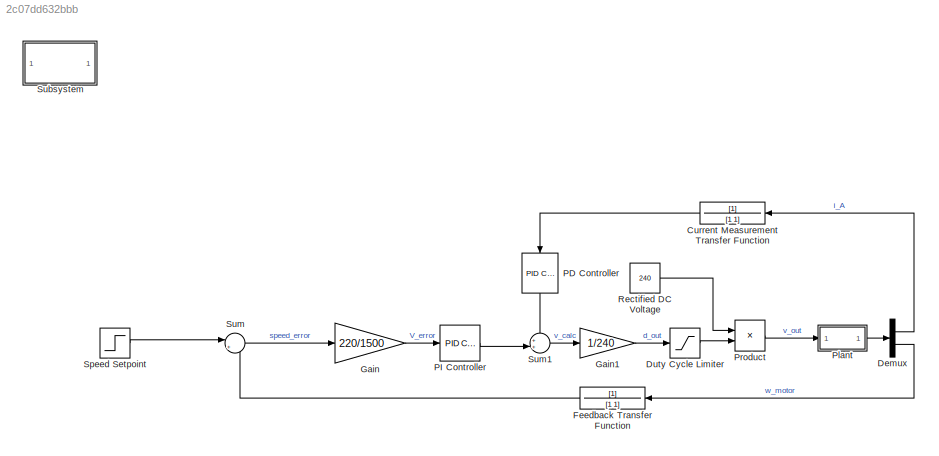
MODEL slx_2c07dd632bbb
KIND model
CONFIG AbsTol = auto
CONFIG EnableMultiTasking = off
CONFIG FixedStep = auto
CONFIG MaxStep = auto
CONFIG MinStep = auto
CONFIG RelTol = 1e-3
CONFIG SampleTimeConstraint = Unconstrained
CONFIG SolverName = VariableStepAuto
CONFIG StartTime = 0.0
CONFIG StopTime = 10.0
BLOCK [TransferFcn] Current Measurement Transfer Function
  Denominator = [1 1]
BLOCK [Demux] Demux
  Outputs = 2
BLOCK [Saturate] Duty Cycle Limiter
  LowerLimit = 0
  UpperLimit = 1
BLOCK [TransferFcn] Feedback Transfer Function
  Denominator = [1 1]
BLOCK [Gain] Gain
  Gain = 220/1500
BLOCK [Gain] Gain1
  Gain = 1/240
BLOCK [Reference] PD Controller  REF=slpidlib/PID Controller
  LibrarySourceBlock = simulink/Continuous/PID Controller
  NameLocation = left
  SourceBlock = slpidlib/PID Controller
  SourceType = PID 1dof
BLOCK [Reference] PI Controller  REF=slpidlib/PID Controller
  LibrarySourceBlock = simulink/Continuous/PID Controller
  SourceBlock = slpidlib/PID Controller
  SourceType = PID 1dof
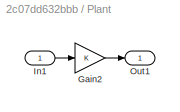
BLOCK [SubSystem] Plant
BLOCK [Gain] Plant/Gain2
BLOCK [Inport] Plant/In1
BLOCK [Outport] Plant/Out1
BLOCK [Product] Product
BLOCK [Constant] Rectified DC Voltage
  Value = 240
BLOCK [Step] Speed Setpoint
  SampleTime = 0
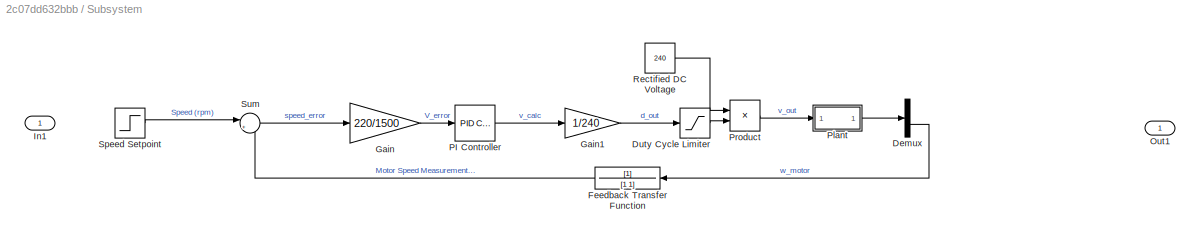
BLOCK [SubSystem] Subsystem
BLOCK [Demux] Subsystem/Demux
  Outputs = 2
BLOCK [Saturate] Subsystem/Duty Cycle Limiter
  LowerLimit = 0
  UpperLimit = 1
BLOCK [TransferFcn] Subsystem/Feedback Transfer Function
  Denominator = [1 1]
BLOCK [Gain] Subsystem/Gain
  Gain = 220/1500
BLOCK [Gain] Subsystem/Gain1
  Gain = 1/240
BLOCK [Inport] Subsystem/In1
BLOCK [Outport] Subsystem/Out1
BLOCK [Reference] Subsystem/PI Controller  REF=slpidlib/PID Controller
  LibrarySourceBlock = simulink/Continuous/PID Controller
  SourceBlock = slpidlib/PID Controller
  SourceType = PID 1dof
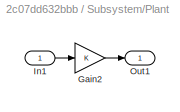
BLOCK [SubSystem] Subsystem/Plant
BLOCK [Gain] Subsystem/Plant/Gain2
BLOCK [Inport] Subsystem/Plant/In1
BLOCK [Outport] Subsystem/Plant/Out1
BLOCK [Product] Subsystem/Product
BLOCK [Constant] Subsystem/Rectified DC Voltage
  Value = 240
BLOCK [Step] Subsystem/Speed Setpoint
  SampleTime = 0
BLOCK [Sum] Subsystem/Sum
  Inputs = |+-
BLOCK [Sum] Sum
  Inputs = |+-
BLOCK [Sum] Sum1
  Inputs = ++|
LINE Current Measurement Transfer Function:1 -> PD Controller:1
LINE Demux:1 -> Current Measurement Transfer Function:1
LINE Demux:2 -> Feedback Transfer Function:1
LINE Duty Cycle Limiter:1 -> Product:2
LINE Feedback Transfer Function:1 -> Sum:2
LINE Gain1:1 -> Duty Cycle Limiter:1
LINE Gain:1 -> PI Controller:1
LINE PD Controller:1 -> Sum1:1
LINE PI Controller:1 -> Sum1:2
LINE Plant/Gain2:1 -> Plant/Out1:1
LINE Plant/In1:1 -> Plant/Gain2:1
LINE Plant:1 -> Demux:1
LINE Product:1 -> Plant:1
LINE Rectified DC Voltage:1 -> Product:1
LINE Speed Setpoint:1 -> Sum:1
LINE Subsystem/Demux:2 -> Subsystem/Feedback Transfer Function:1
LINE Subsystem/Duty Cycle Limiter:1 -> Subsystem/Product:2
LINE Subsystem/Feedback Transfer Function:1 -> Subsystem/Sum:2
LINE Subsystem/Gain1:1 -> Subsystem/Duty Cycle Limiter:1
LINE Subsystem/Gain:1 -> Subsystem/PI Controller:1
LINE Subsystem/PI Controller:1 -> Subsystem/Gain1:1
LINE Subsystem/Plant/Gain2:1 -> Subsystem/Plant/Out1:1
LINE Subsystem/Plant/In1:1 -> Subsystem/Plant/Gain2:1
LINE Subsystem/Plant:1 -> Subsystem/Demux:1
LINE Subsystem/Product:1 -> Subsystem/Plant:1
LINE Subsystem/Rectified DC Voltage:1 -> Subsystem/Product:1
LINE Subsystem/Speed Setpoint:1 -> Subsystem/Sum:1
LINE Subsystem/Sum:1 -> Subsystem/Gain:1
LINE Sum1:1 -> Gain1:1
LINE Sum:1 -> Gain:1
